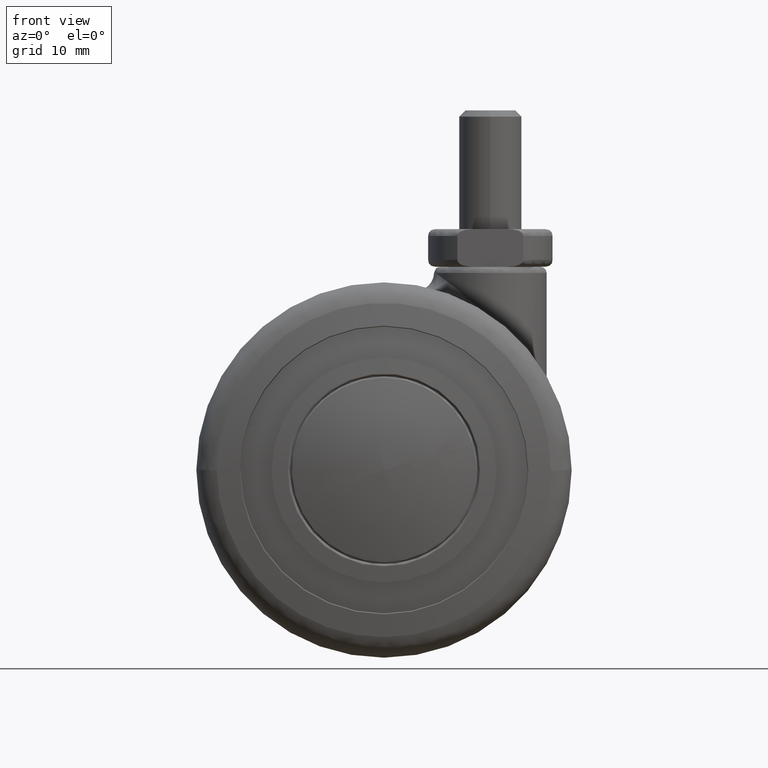
[diagram: clean part render]
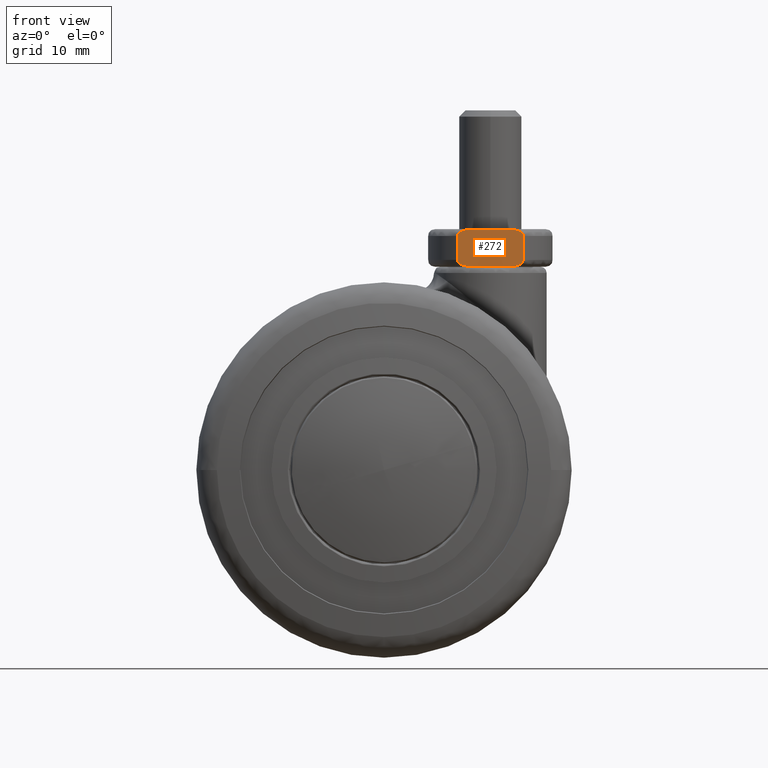
[diagram: same view with one face highlighted and labeled with its STEP entity id]
A machine part, front view. The second image highlights one B-rep face of the part: STEP entity #272.
In plain terms, the highlighted planar face has unit normal (0, 1, -0).
Its self-contained STEP definition (entity closure, byte-faithful):
#272=ADVANCED_FACE('',(#1464),#1463,.F.);
#1463=PLANE('',#4192);
#1464=FACE_OUTER_BOUND('',#4193,.T.);
#4189=CARTESIAN_POINT('',(-6.60000000000E+00,-6.32139225171E+00,-8.50000000000E+00));
#4190=DIRECTION('',(0.00000000000E+00,-0.00000000000E+00,1.00000000000E+00));
#4191=DIRECTION('',(1.00000000000E+00,0.00000000000E+00,-0.00000000000E+00));
#4192=AXIS2_PLACEMENT_3D('',#4189,#4190,#4191);
#4193=EDGE_LOOP('',(#5057,#5058,#5059,#5060,#5061,#5062,#5063,#5064));
#5057=ORIENTED_EDGE('',*,*,#5496,.T.);
#5058=ORIENTED_EDGE('',*,*,#5500,.T.);
#5059=ORIENTED_EDGE('',*,*,#5509,.F.);
#5060=ORIENTED_EDGE('',*,*,#5510,.T.);
#5061=ORIENTED_EDGE('',*,*,#5503,.F.);
#5062=ORIENTED_EDGE('',*,*,#5511,.T.);
#5063=ORIENTED_EDGE('',*,*,#5512,.T.);
#5064=ORIENTED_EDGE('',*,*,#5513,.T.);
#5496=EDGE_CURVE('',#7413,#7406,#7414,.T.);
#5500=EDGE_CURVE('',#7406,#7440,#7441,.T.);
#5503=EDGE_CURVE('',#7460,#7461,#7462,.T.);
#5509=EDGE_CURVE('',#7502,#7440,#7503,.T.);
#5510=EDGE_CURVE('',#7502,#7461,#7509,.T.);
#5511=EDGE_CURVE('',#7460,#7515,#7516,.T.);
#5512=EDGE_CURVE('',#7515,#7522,#7523,.T.);
#5513=EDGE_CURVE('',#7522,#7413,#7529,.T.);
#7406=VERTEX_POINT('',#9477);
#7413=VERTEX_POINT('',#9482);
#7414=LINE('',#9483,#9484);
#7440=VERTEX_POINT('',#9500);
#7441=(BOUNDED_CURVE() B_SPLINE_CURVE(3,(#9501,#9502,#9503,#9504,#9505,#9506,#9507,#9508,#9509,#9510,#9511,#9512),.UNSPECIFIED.,.F.,.F.) B_SPLINE_CURVE_WITH_KNOTS((4,2,2,2,2,4),(8.70256462581E-19,7.70109547147E-04,1.54021909429E-03,2.31032864144E-03,2.69538341502E-03,3.08043818859E-03),.UNSPECIFIED.) CURVE() GEOMETRIC_REPRESENTATION_ITEM() RATIONAL_B_SPLINE_CURVE((1.00000000000E+00,1.00000000000E+00,1.00000000000E+00,1.00000000000E+00,1.00000000000E+00,1.00000000000E+00,1.00000000000E+00,1.00000000000E+00,1.00000000000E+00,1.00000000000E+00,1.00000000000E+00,1.00000000000E+00)) REPRESENTATION_ITEM('') );
#7460=VERTEX_POINT('',#9532);
#7461=VERTEX_POINT('',#9533);
#7462=LINE('',#9534,#9535);
#7502=VERTEX_POINT('',#9560);
#7503=LINE('',#9561,#9562);
#7509=(BOUNDED_CURVE() B_SPLINE_CURVE(3,(#9564,#9565,#9566,#9567,#9568,#9569,#9570,#9571,#9572,#9573,#9574,#9575,#9576,#9577),.UNSPECIFIED.,.F.,.F.) B_SPLINE_CURVE_WITH_KNOTS((4,2,2,2,2,2,4),(0.00000000000E+00,3.88495916529E-04,7.76991833057E-04,1.16548774959E-03,1.55398366611E-03,2.33097549917E-03,3.10796733223E-03),.UNSPECIFIED.) CURVE() GEOMETRIC_REPRESENTATION_ITEM() RATIONAL_B_SPLINE_CURVE((1.00000000000E+00,1.00000000000E+00,1.00000000000E+00,1.00000000000E+00,1.00000000000E+00,1.00000000000E+00,1.00000000000E+00,1.00000000000E+00,1.00000000000E+00,1.00000000000E+00,1.00000000000E+00,1.00000000000E+00,1.00000000000E+00,1.00000000000E+00)) REPRESENTATION_ITEM('') );
#7515=VERTEX_POINT('',#9578);
#7516=(BOUNDED_CURVE() B_SPLINE_CURVE(3,(#9579,#9580,#9581,#9582,#9583,#9584,#9585,#9586,#9587,#9588,#9589,#9590),.UNSPECIFIED.,.F.,.F.) B_SPLINE_CURVE_WITH_KNOTS((4,2,2,2,2,4),(3.03576608296E-18,7.70109547147E-04,1.54021909429E-03,2.31032864144E-03,2.69538341502E-03,3.08043818859E-03),.UNSPECIFIED.) CURVE() GEOMETRIC_REPRESENTATION_ITEM() RATIONAL_B_SPLINE_CURVE((1.00000000000E+00,1.00000000000E+00,1.00000000000E+00,1.00000000000E+00,1.00000000000E+00,1.00000000000E+00,1.00000000000E+00,1.00000000000E+00,1.00000000000E+00,1.00000000000E+00,1.00000000000E+00,1.00000000000E+00)) REPRESENTATION_ITEM('') );
#7522=VERTEX_POINT('',#9591);
#7523=LINE('',#9592,#9593);
#7529=(BOUNDED_CURVE() B_SPLINE_CURVE(3,(#9595,#9596,#9597,#9598,#9599,#9600,#9601,#9602,#9603,#9604,#9605,#9606,#9607,#9608),.UNSPECIFIED.,.F.,.F.) B_SPLINE_CURVE_WITH_KNOTS((4,2,2,2,2,2,4),(0.00000000000E+00,3.88495916529E-04,7.76991833057E-04,1.16548774959E-03,1.55398366611E-03,2.33097549917E-03,3.10796733223E-03),.UNSPECIFIED.) CURVE() GEOMETRIC_REPRESENTATION_ITEM() RATIONAL_B_SPLINE_CURVE((1.00000000000E+00,1.00000000000E+00,1.00000000000E+00,1.00000000000E+00,1.00000000000E+00,1.00000000000E+00,1.00000000000E+00,1.00000000000E+00,1.00000000000E+00,1.00000000000E+00,1.00000000000E+00,1.00000000000E+00,1.00000000000E+00,1.00000000000E+00)) REPRESENTATION_ITEM('') );
#9477=CARTESIAN_POINT('',(0.00000000000E+00,-2.63818119165E+00,-8.50000000000E+00));
#9482=CARTESIAN_POINT('',(0.00000000000E+00,2.63818119165E+00,-8.50000000000E+00));
#9483=CARTESIAN_POINT('',(0.00000000000E+00,2.63818119165E+00,-8.50000000000E+00));
#9484=VECTOR('',#9485,5.27636238331E+00);
#9485=DIRECTION('',(0.00000000000E+00,-1.00000000000E+00,-6.73326322324E-16));
#9500=CARTESIAN_POINT('',(-1.10000000000E+00,-5.26782687643E+00,-8.50000000000E+00));
#9501=CARTESIAN_POINT('',(0.00000000000E+00,-2.63818119165E+00,-8.50000000000E+00));
#9502=CARTESIAN_POINT('',(-9.52912065661E-19,-2.89575272413E+00,-8.50000000000E+00));
#9503=CARTESIAN_POINT('',(-7.70887567934E-03,-3.15268964969E+00,-8.50000000000E+00));
#9504=CARTESIAN_POINT('',(-5.36080344117E-02,-3.66405422282E+00,-8.50000000000E+00));
#9505=CARTESIAN_POINT('',(-9.16527602916E-02,-3.92035952819E+00,-8.50000000000E+00));
#9506=CARTESIAN_POINT('',(-2.23730215671E-01,-4.41835256918E+00,-8.50000000000E+00));
#9507=CARTESIAN_POINT('',(-3.17408247828E-01,-4.66373596702E+00,-8.50000000000E+00));
#9508=CARTESIAN_POINT('',(-5.37698987677E-01,-4.97741395515E+00,-8.50000000000E+00));
#9509=CARTESIAN_POINT('',(-6.27225778854E-01,-5.07528084069E+00,-8.50000000000E+00));
#9510=CARTESIAN_POINT('',(-8.42046734144E-01,-5.22129987499E+00,-8.50000000000E+00));
#9511=CARTESIAN_POINT('',(-9.68532524119E-01,-5.26782687643E+00,-8.50000000000E+00));
#9512=CARTESIAN_POINT('',(-1.10000000000E+00,-5.26782687643E+00,-8.50000000000E+00));
#9532=CARTESIAN_POINT('',(-6.00000000000E+00,2.63818119165E+00,-8.50000000000E+00));
#9533=CARTESIAN_POINT('',(-6.00000000000E+00,-2.63818119165E+00,-8.50000000000E+00));
#9534=CARTESIAN_POINT('',(-6.00000000000E+00,2.63818119165E+00,-8.50000000000E+00));
#9535=VECTOR('',#9536,5.27636238331E+00);
#9536=DIRECTION('',(0.00000000000E+00,-1.00000000000E+00,0.00000000000E+00));
#9560=CARTESIAN_POINT('',(-4.90000000000E+00,-5.26782687643E+00,-8.50000000000E+00));
#9561=CARTESIAN_POINT('',(-4.90000000000E+00,-5.26782687643E+00,-8.50000000000E+00));
#9562=VECTOR('',#9563,3.80000000000E+00);
#9563=DIRECTION('',(1.00000000000E+00,0.00000000000E+00,0.00000000000E+00));
#9564=CARTESIAN_POINT('',(-4.90000000000E+00,-5.26782687643E+00,-8.50000000000E+00));
#9565=CARTESIAN_POINT('',(-5.03150044680E+00,-5.26782687643E+00,-8.50000000000E+00));
#9566=CARTESIAN_POINT('',(-5.15760131996E+00,-5.22161234199E+00,-8.50000000000E+00));
#9567=CARTESIAN_POINT('',(-5.37375537376E+00,-5.07454047306E+00,-8.50000000000E+00));
#9568=CARTESIAN_POINT('',(-5.46215408131E+00,-4.97791877551E+00,-8.50000000000E+00));
#9569=CARTESIAN_POINT('',(-5.61147475379E+00,-4.76470148028E+00,-8.50000000000E+00));
#9570=CARTESIAN_POINT('',(-5.67075768819E+00,-4.65037410100E+00,-8.50000000000E+00));
#9571=CARTESIAN_POINT('',(-5.77067842900E+00,-4.41236036611E+00,-8.50000000000E+00));
#9572=CARTESIAN_POINT('',(-5.81100489387E+00,-4.28820403780E+00,-8.50000000000E+00));
#9573=CARTESIAN_POINT('',(-5.90920059051E+00,-3.91544957079E+00,-8.50000000000E+00));
#9574=CARTESIAN_POINT('',(-5.94652828027E+00,-3.66275141159E+00,-8.50000000000E+00));
#9575=CARTESIAN_POINT('',(-5.99224030503E+00,-3.15303954897E+00,-8.50000000000E+00));
#9576=CARTESIAN_POINT('',(-6.00000000000E+00,-2.89554108775E+00,-8.50000000000E+00));
#9577=CARTESIAN_POINT('',(-6.00000000000E+00,-2.63818119165E+00,-8.50000000000E+00));
#9578=CARTESIAN_POINT('',(-4.90000000000E+00,5.26782687643E+00,-8.50000000000E+00));
#9579=CARTESIAN_POINT('',(-6.00000000000E+00,2.63818119165E+00,-8.50000000000E+00));
#9580=CARTESIAN_POINT('',(-6.00000000000E+00,2.89575272413E+00,-8.50000000000E+00));
#9581=CARTESIAN_POINT('',(-5.99229112432E+00,3.15268964969E+00,-8.50000000000E+00));
#9582=CARTESIAN_POINT('',(-5.94639196559E+00,3.66405422282E+00,-8.50000000000E+00));
#9583=CARTESIAN_POINT('',(-5.90834723971E+00,3.92035952819E+00,-8.50000000000E+00));
#9584=CARTESIAN_POINT('',(-5.77626978433E+00,4.41835256918E+00,-8.50000000000E+00));
#9585=CARTESIAN_POINT('',(-5.68259175217E+00,4.66373596702E+00,-8.50000000000E+00));
#9586=CARTESIAN_POINT('',(-5.46230101232E+00,4.97741395515E+00,-8.50000000000E+00));
#9587=CARTESIAN_POINT('',(-5.37277422115E+00,5.07528084069E+00,-8.50000000000E+00));
#9588=CARTESIAN_POINT('',(-5.15795326586E+00,5.22129987499E+00,-8.50000000000E+00));
#9589=CARTESIAN_POINT('',(-5.03146747588E+00,5.26782687643E+00,-8.50000000000E+00));
#9590=CARTESIAN_POINT('',(-4.90000000000E+00,5.26782687643E+00,-8.50000000000E+00));
#9591=CARTESIAN_POINT('',(-1.10000000000E+00,5.26782687643E+00,-8.50000000000E+00));
#9592=CARTESIAN_POINT('',(-4.90000000000E+00,5.26782687643E+00,-8.50000000000E+00));
#9593=VECTOR('',#9594,3.80000000000E+00);
#9594=DIRECTION('',(1.00000000000E+00,0.00000000000E+00,0.00000000000E+00));
#9595=CARTESIAN_POINT('',(-1.10000000000E+00,5.26782687643E+00,-8.50000000000E+00));
#9596=CARTESIAN_POINT('',(-9.68499553201E-01,5.26782687643E+00,-8.50000000000E+00));
#9597=CARTESIAN_POINT('',(-8.42398680044E-01,5.22161234199E+00,-8.50000000000E+00));
#9598=CARTESIAN_POINT('',(-6.26244626236E-01,5.07454047306E+00,-8.50000000000E+00));
#9599=CARTESIAN_POINT('',(-5.37845918692E-01,4.97791877551E+00,-8.50000000000E+00));
#9600=CARTESIAN_POINT('',(-3.88525246211E-01,4.76470148028E+00,-8.50000000000E+00));
#9601=CARTESIAN_POINT('',(-3.29242311810E-01,4.65037410100E+00,-8.50000000000E+00));
#9602=CARTESIAN_POINT('',(-2.29321570996E-01,4.41236036611E+00,-8.50000000000E+00));
#9603=CARTESIAN_POINT('',(-1.88995106134E-01,4.28820403780E+00,-8.50000000000E+00));
#9604=CARTESIAN_POINT('',(-9.07994094855E-02,3.91544957079E+00,-8.50000000000E+00));
#9605=CARTESIAN_POINT('',(-5.34717197284E-02,3.66275141159E+00,-8.50000000000E+00));
#9606=CARTESIAN_POINT('',(-7.75969497104E-03,3.15303954897E+00,-8.50000000000E+00));
#9607=CARTESIAN_POINT('',(-1.40607469244E-16,2.89554108775E+00,-8.50000000000E+00));
#9608=CARTESIAN_POINT('',(0.00000000000E+00,2.63818119165E+00,-8.50000000000E+00));